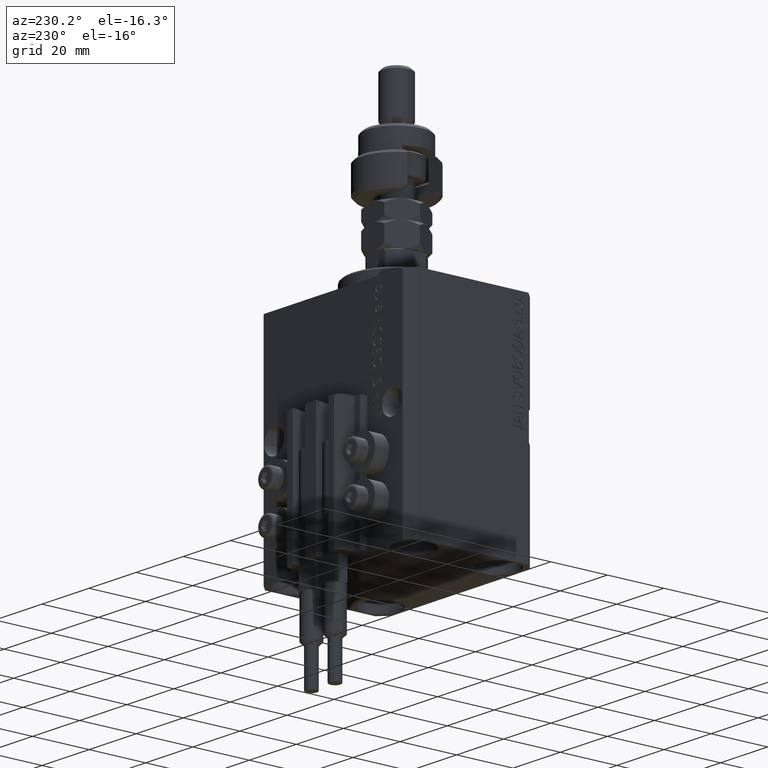
[diagram: clean part render]
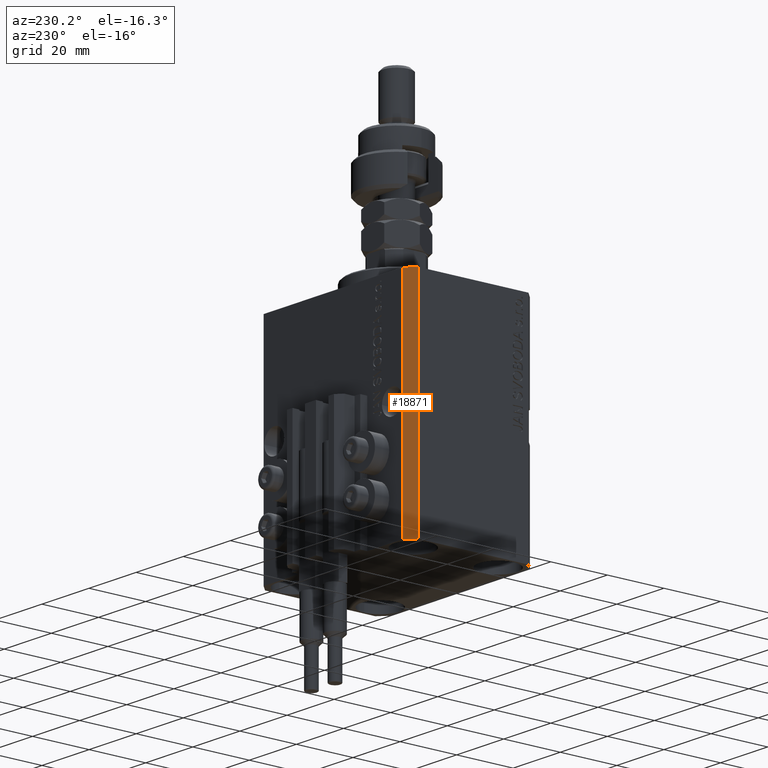
[diagram: same view with one face highlighted and labeled with its STEP entity id]
A machine part, auxiliary view. The second image highlights one B-rep face of the part: STEP entity #18871.
In plain terms, the highlighted planar face has unit normal (-0.7071, 0.7071, 0).
Its self-contained STEP definition (entity closure, byte-faithful):
#97 = CARTESIAN_POINT ( 'NONE',  ( -29.49999999999650413, 22.49999999999949907, -77.00000000000000000 ) ) ;
#1069 = EDGE_CURVE ( 'NONE', #29766, #47863, #27324, .T. ) ;
#4419 = ORIENTED_EDGE ( 'NONE', *, *, #14079, .F. ) ;
#6457 = VECTOR ( 'NONE', #23465, 1000.000000000000114 ) ;
#8215 = DIRECTION ( 'NONE',  ( 0.000000000000000000, 0.000000000000000000, 1.000000000000000000 ) ) ;
#9577 = CARTESIAN_POINT ( 'NONE',  ( -32.49999999999650413, 19.49999999999949907, -77.00000000000000000 ) ) ;
#9914 = CARTESIAN_POINT ( 'NONE',  ( -29.49999999999650413, 22.49999999999949907, -77.00000000000000000 ) ) ;
#10082 = EDGE_CURVE ( 'NONE', #18136, #29024, #36662, .T. ) ;
#10662 = LINE ( 'NONE', #9914, #38710 ) ;
#14079 = EDGE_CURVE ( 'NONE', #29766, #18136, #10662, .T. ) ;
#14747 = EDGE_CURVE ( 'NONE', #47863, #29024, #44204, .T. ) ;
#16594 = VECTOR ( 'NONE', #8215, 1000.000000000000000 ) ;
#17145 = CARTESIAN_POINT ( 'NONE',  ( -29.49999999999650413, 22.49999999999949907, 0.000000000000000000 ) ) ;
#18136 = VERTEX_POINT ( 'NONE', #44851 ) ;
#18871 = ADVANCED_FACE ( 'NONE', ( #50029 ), #25691, .T. ) ;
#23106 = CARTESIAN_POINT ( 'NONE',  ( -29.49999999999650413, 22.49999999999949907, -77.00000000000000000 ) ) ;
#23465 = DIRECTION ( 'NONE',  ( -0.7071067811865474617, -0.7071067811865474617, 0.000000000000000000 ) ) ;
#25691 = PLANE ( 'NONE',  #47167 ) ;
#26342 = DIRECTION ( 'NONE',  ( 0.000000000000000000, 0.000000000000000000, 1.000000000000000000 ) ) ;
#27324 = LINE ( 'NONE', #97, #6457 ) ;
#28256 = CARTESIAN_POINT ( 'NONE',  ( -32.49999999999650413, 19.49999999999949907, -77.00000000000000000 ) ) ;
#29024 = VERTEX_POINT ( 'NONE', #48544 ) ;
#29146 = EDGE_LOOP ( 'NONE', ( #30148, #4419, #47843, #36273 ) ) ;
#29766 = VERTEX_POINT ( 'NONE', #23106 ) ;
#30148 = ORIENTED_EDGE ( 'NONE', *, *, #10082, .F. ) ;
#36273 = ORIENTED_EDGE ( 'NONE', *, *, #14747, .T. ) ;
#36662 = LINE ( 'NONE', #17145, #49233 ) ;
#38710 = VECTOR ( 'NONE', #26342, 1000.000000000000000 ) ;
#41113 = DIRECTION ( 'NONE',  ( -0.7071067811865474617, -0.7071067811865474617, 0.000000000000000000 ) ) ;
#44204 = LINE ( 'NONE', #28256, #16594 ) ;
#44851 = CARTESIAN_POINT ( 'NONE',  ( -29.49999999999650413, 22.49999999999949907, 0.000000000000000000 ) ) ;
#46436 = DIRECTION ( 'NONE',  ( -0.7071067811865475727, 0.7071067811865475727, 0.000000000000000000 ) ) ;
#46681 = CARTESIAN_POINT ( 'NONE',  ( -29.49999999999650413, 22.49999999999949907, -77.00000000000000000 ) ) ;
#47167 = AXIS2_PLACEMENT_3D ( 'NONE', #46681, #46436, #41113 ) ;
#47843 = ORIENTED_EDGE ( 'NONE', *, *, #1069, .T. ) ;
#47863 = VERTEX_POINT ( 'NONE', #9577 ) ;
#48520 = DIRECTION ( 'NONE',  ( -0.7071067811865474617, -0.7071067811865474617, 0.000000000000000000 ) ) ;
#48544 = CARTESIAN_POINT ( 'NONE',  ( -32.49999999999650413, 19.49999999999949907, 0.000000000000000000 ) ) ;
#49233 = VECTOR ( 'NONE', #48520, 1000.000000000000114 ) ;
#50029 = FACE_OUTER_BOUND ( 'NONE', #29146, .T. ) ;